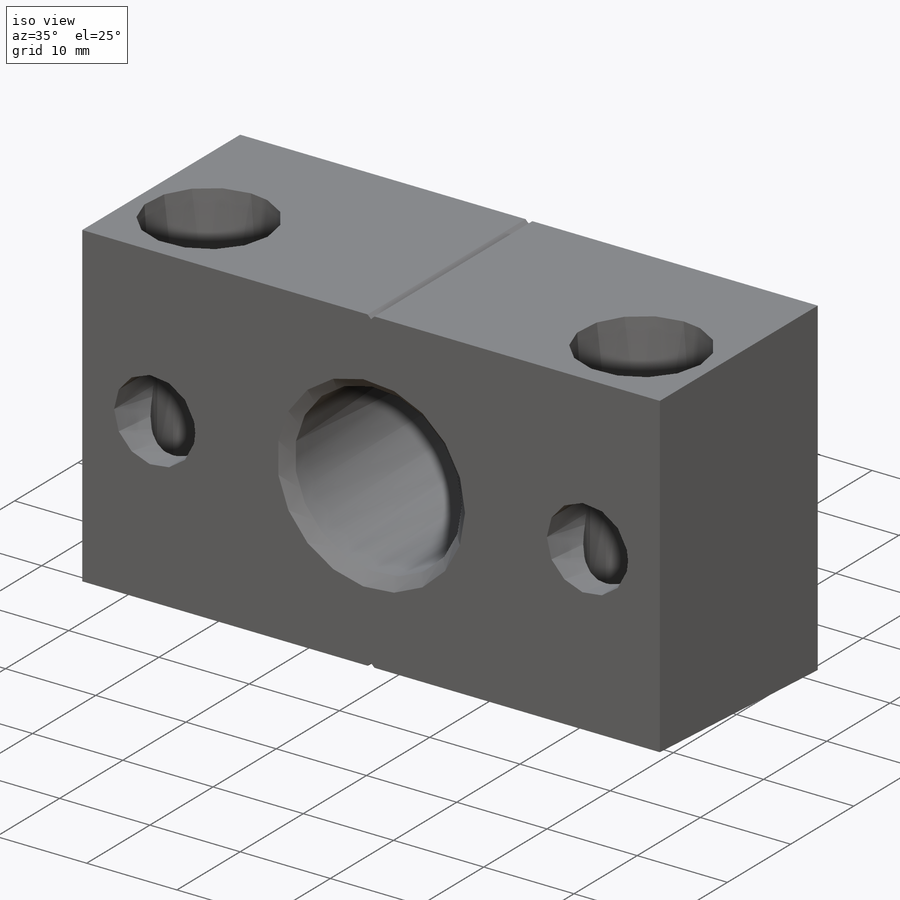
[diagram: iso view]
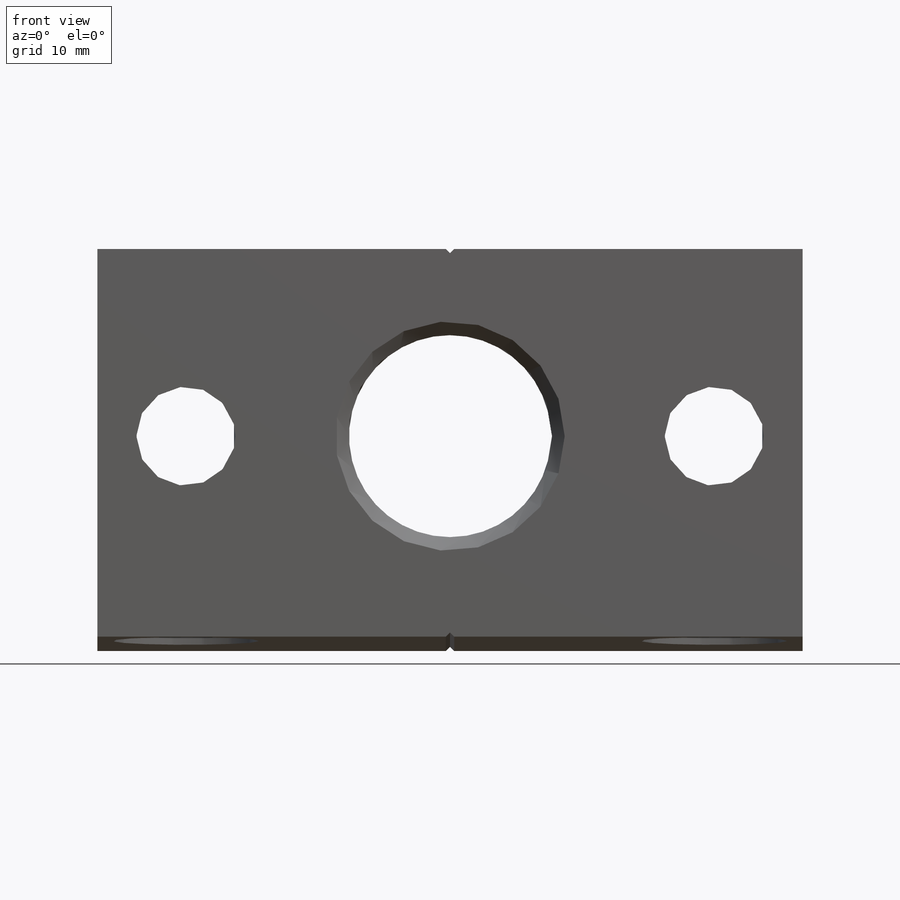
[diagram: front view]
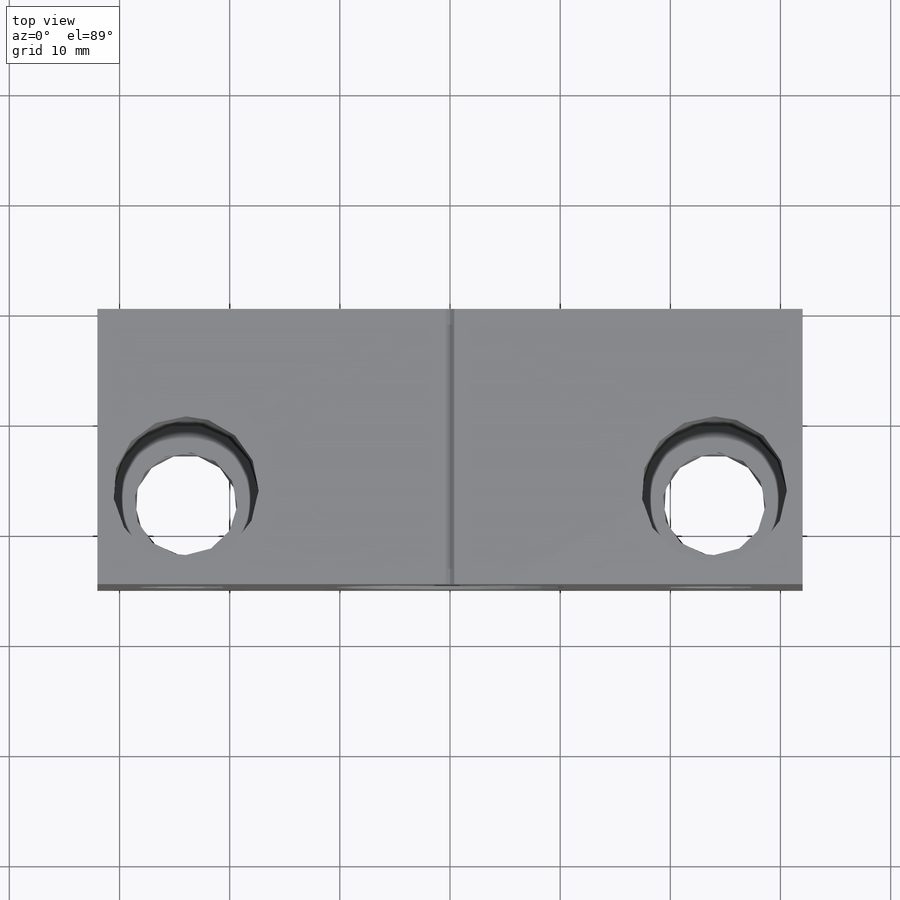
[diagram: top view]
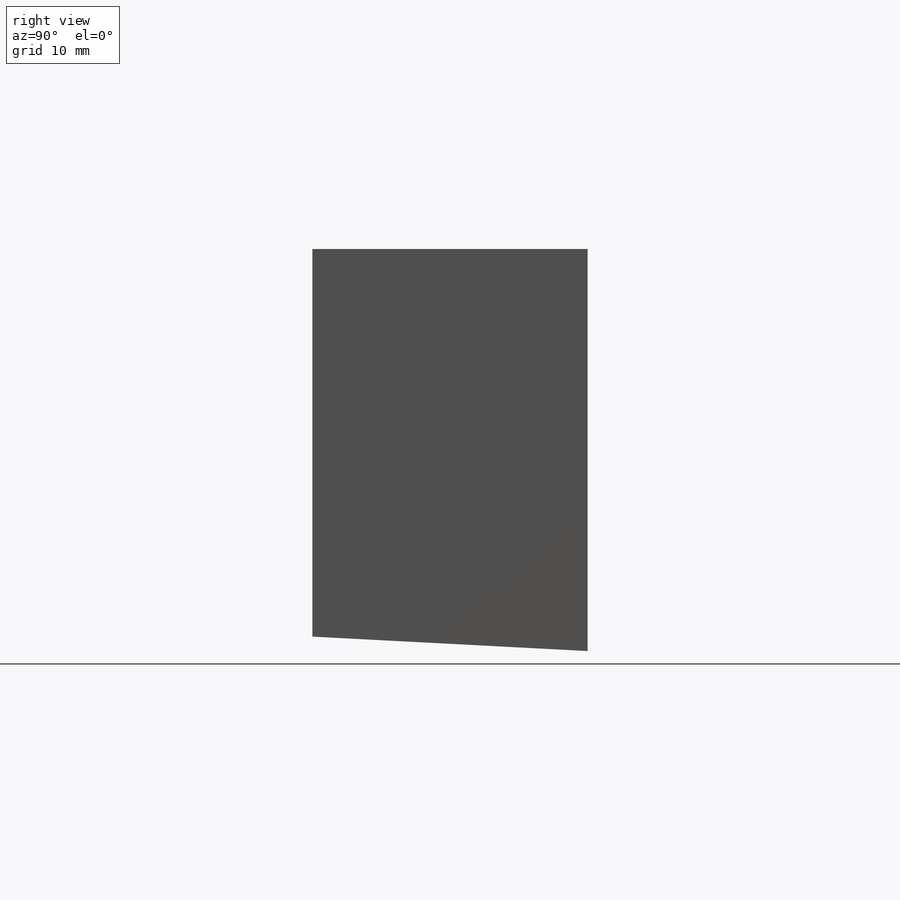
[diagram: right view]
SOLIDWORKS PART (.sldprt)
format: sldprt  version: not decoded by parser v0  size: 254,976 bytes
history: native  units: mm
features: sketch x6, cut_extrude x3, plane x2, cut_revolve x2, material x1, extrude x1, pattern_linear x1, chamfer x1 (+13 scaffold rows collapsed)
feature tree (30):
  scaffold x13  (default folders/planes/origin — collapsed)
  material  "Alloy Steel"
  sketch  "Sketch1"  dims[D4=18.517mm D5=8.9916mm D1=64.008mm D2=36.4998mm D3=16.9926mm D6=23.9776mm D7=47.9552mm]
  extrude  "Extrude1"  Depth=24.9936mm
  sketch  "Sketch2"  dims[c1.D1=~25.568758mm c2.D1=3.0deg]
  cut_extrude  "Cut-Extrude1"  [1 undecoded]
  plane  "Plane1"
  sketch  "Sketch3"  dims[D1=17.5006mm D2=9.3472mm D3=13.208mm D4=25.4mm]
  cut_revolve  "Cut-Revolve1"  Angle=360deg
  sketch  "Sketch4"  dims[D1=18.2626mm D2=25.4mm D3=13.208mm]
  cut_revolve  "Cut-Revolve2"  Angle=360deg
  pattern_linear  "LPattern1"  Count1=2 Count2=1 Spacing1=47.9552mm Spacing2=2.54mm
  chamfer  "Chamfer1"  Distance=1.1555mm Angle=45deg
  sketch  "Sketch5"  dims[c1.D1=~2.114621mm c2.D1=90.0deg c2.D2=0.381mm]
  cut_extrude  "Cut-Extrude2"  [1 undecoded]
  plane  "Plane2"
  sketch  "Sketch6"  dims[c1.D1=~3.332178mm c2.D1=90.0deg c3.D1=0.381mm]
  cut_extrude  "Cut-Extrude3"  [1 undecoded]
decode coverage: 11 of 14 modeling features carry decoded parameters
note: ~ marks probable driven/reference dimensions
note: 3 parameter values undecoded
summary: no parameter record found for 3 features
note: suppression state not decoded; provenance and decode notes live in map.json
